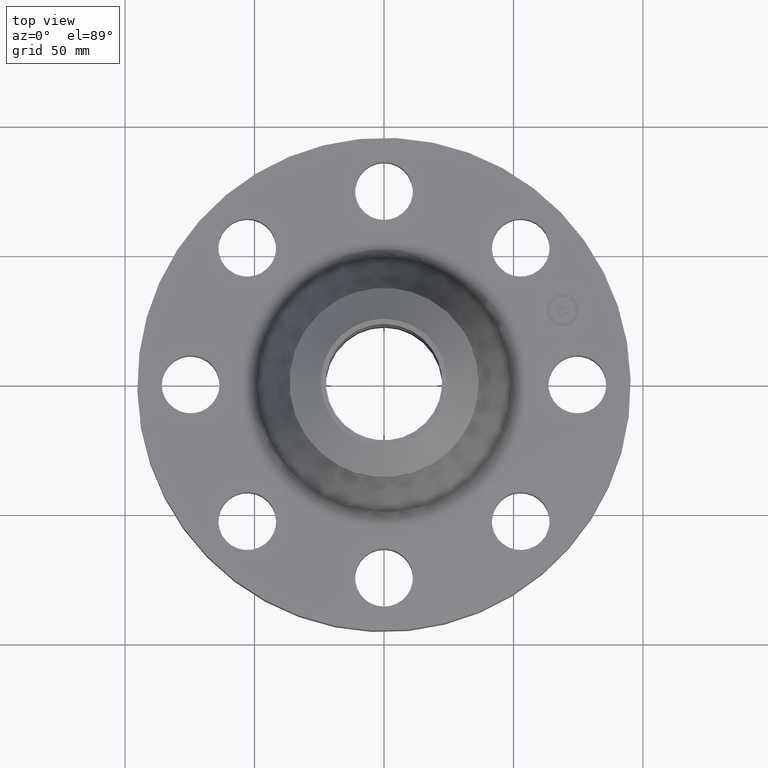
[diagram: clean part render]
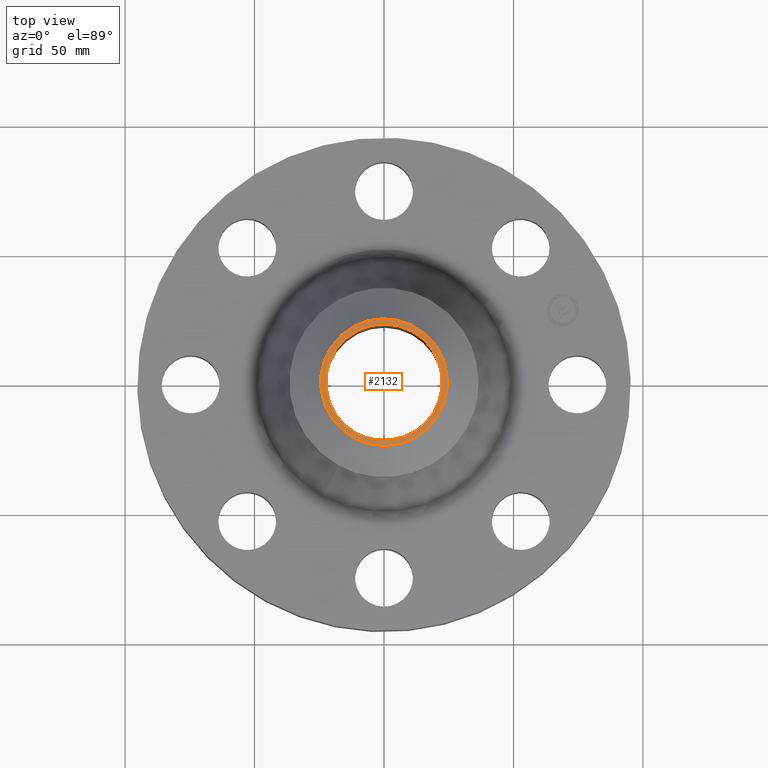
[diagram: same view with one face highlighted and labeled with its STEP entity id]
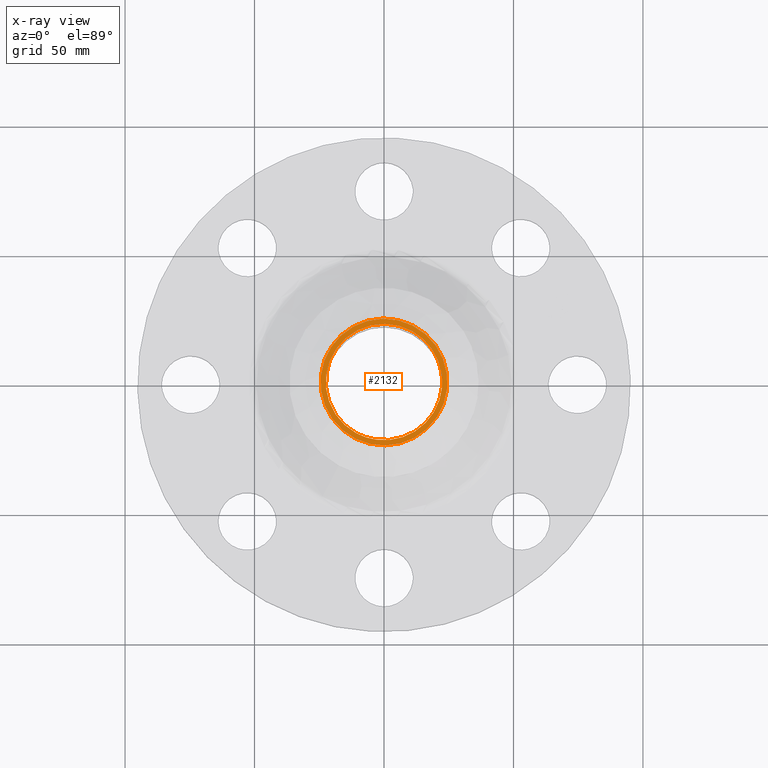
[diagram: x-ray of the same camera — body ghosted, the highlighted face saturated]
A machine part, top view. The second image highlights one B-rep face of the part: STEP entity #2132.
The next image is the same camera in x-ray: the body ghosted, the highlighted face saturated — about 0% of this face is hidden behind the body in this view.
In plain terms, the highlighted planar face has unit normal (0, 0, -1).
Its self-contained STEP definition (entity closure, byte-faithful):
#1440=AXIS2_PLACEMENT_3D('Circle Axis2P3D',#1438,#1439,$) ;
#2108=AXIS2_PLACEMENT_3D('Plane Axis2P3D',#2105,#2106,#2107) ;
#2112=AXIS2_PLACEMENT_3D('Circle Axis2P3D',#2110,#2111,$) ;
#2121=AXIS2_PLACEMENT_3D('Circle Axis2P3D',#2119,#2120,$) ;
#1389=CARTESIAN_POINT('Control Point',(0.424531314436,0.777099358557,3.12000000001)) ;
#1390=CARTESIAN_POINT('Control Point',(0.546597796234,0.710414135625,3.12000000001)) ;
#1391=CARTESIAN_POINT('Control Point',(0.655570665127,0.619761215038,3.12000000001)) ;
#1392=CARTESIAN_POINT('Control Point',(0.745153965952,0.508549336512,3.12000000001)) ;
#1393=CARTESIAN_POINT('Control Point',(0.875887501371,0.256992393893,3.12000000002)) ;
#1394=CARTESIAN_POINT('Control Point',(0.901795820728,-0.0253211049886,3.12000000002)) ;
#1395=CARTESIAN_POINT('Control Point',(0.886502106768,-0.167304737937,3.12000000002)) ;
#1396=CARTESIAN_POINT('Control Point',(0.801067056211,-0.43762492734,3.12000000002)) ;
#1397=CARTESIAN_POINT('Control Point',(0.619761215038,-0.655570665127,3.12000000002)) ;
#1398=CARTESIAN_POINT('Control Point',(0.508549336512,-0.745153965952,3.12000000002)) ;
#1399=CARTESIAN_POINT('Control Point',(0.256992393894,-0.875887501371,3.12000000003)) ;
#1400=CARTESIAN_POINT('Control Point',(-0.0253211049886,-0.901795820728,3.12000000003)) ;
#1401=CARTESIAN_POINT('Control Point',(-0.167304737937,-0.886502106768,3.12000000003)) ;
#1402=CARTESIAN_POINT('Control Point',(-0.302464832639,-0.84378458149,3.12000000003)) ;
#1403=CARTESIAN_POINT('Control Point',(-0.424531314436,-0.777099358557,3.12000000003)) ;
#1404=CARTESIAN_POINT('Vertex',(0.424531314436,0.777099358557,3.12000000003)) ;
#1406=CARTESIAN_POINT('Vertex',(-0.424531314405,-0.777099358589,3.12000000001)) ;
#1438=CARTESIAN_POINT('Axis2P3D Location',(0.,0.,3.12000000003)) ;
#2105=CARTESIAN_POINT('Axis2P3D Location',(0.,1.44000000001,3.12000000001)) ;
#2110=CARTESIAN_POINT('Axis2P3D Location',(1.28119387365E-011,3.21338756129E-012,3.12000000001)) ;
#2114=CARTESIAN_POINT('Vertex',(0.462281356846,-0.846200347682,3.12000000001)) ;
#2116=CARTESIAN_POINT('Vertex',(-0.462281356846,0.846200347682,3.12000000001)) ;
#2119=CARTESIAN_POINT('Axis2P3D Location',(-1.28119387365E-011,-1.07859827806E-011,3.12000000001)) ;
#1439=DIRECTION('Axis2P3D Direction',(-0.,0.,-0.0393700787402)) ;
#2106=DIRECTION('Axis2P3D Direction',(0.,0.,-0.0393700787402)) ;
#2107=DIRECTION('Axis2P3D XDirection',(0.0393700787402,0.,0.)) ;
#2111=DIRECTION('Axis2P3D Direction',(0.,0.,-0.0393700787402)) ;
#2120=DIRECTION('Axis2P3D Direction',(0.,0.,-0.0393700787402)) ;
#2125=ORIENTED_EDGE('',*,*,#2118,.T.) ;
#2126=ORIENTED_EDGE('',*,*,#2123,.T.) ;
#2129=ORIENTED_EDGE('',*,*,#1442,.T.) ;
#2130=ORIENTED_EDGE('',*,*,#1408,.T.) ;
#2131=FACE_BOUND('',#2128,.T.) ;
#2132=ADVANCED_FACE('PartBody',(#2127,#2131),#2109,.F.) ;
#1388=B_SPLINE_CURVE_WITH_KNOTS('',5,(#1389,#1390,#1391,#1392,#1393,#1394,#1395,#1396,#1397,#1398,#1399,#1400,#1401,#1402,#1403),.UNSPECIFIED.,.F.,.U.,(6,3,3,3,6),(-35.3298797435,-17.6649398718,0.,17.6649398718,35.3298797435),.UNSPECIFIED.) ;
#1441=CIRCLE('generated circle',#1440,0.885500000004) ;
#2113=CIRCLE('generated circle',#2112,0.964240157473) ;
#2122=CIRCLE('generated circle',#2121,0.964240157473) ;
#1408=EDGE_CURVE('',#1405,#1407,#1388,.T.) ;
#1442=EDGE_CURVE('',#1407,#1405,#1441,.T.) ;
#2118=EDGE_CURVE('',#2115,#2117,#2113,.F.) ;
#2123=EDGE_CURVE('',#2117,#2115,#2122,.F.) ;
#2124=EDGE_LOOP('',(#2125,#2126)) ;
#2128=EDGE_LOOP('',(#2129,#2130)) ;
#2127=FACE_OUTER_BOUND('',#2124,.T.) ;
#2109=PLANE('',#2108) ;
#1405=VERTEX_POINT('',#1404) ;
#1407=VERTEX_POINT('',#1406) ;
#2115=VERTEX_POINT('',#2114) ;
#2117=VERTEX_POINT('',#2116) ;